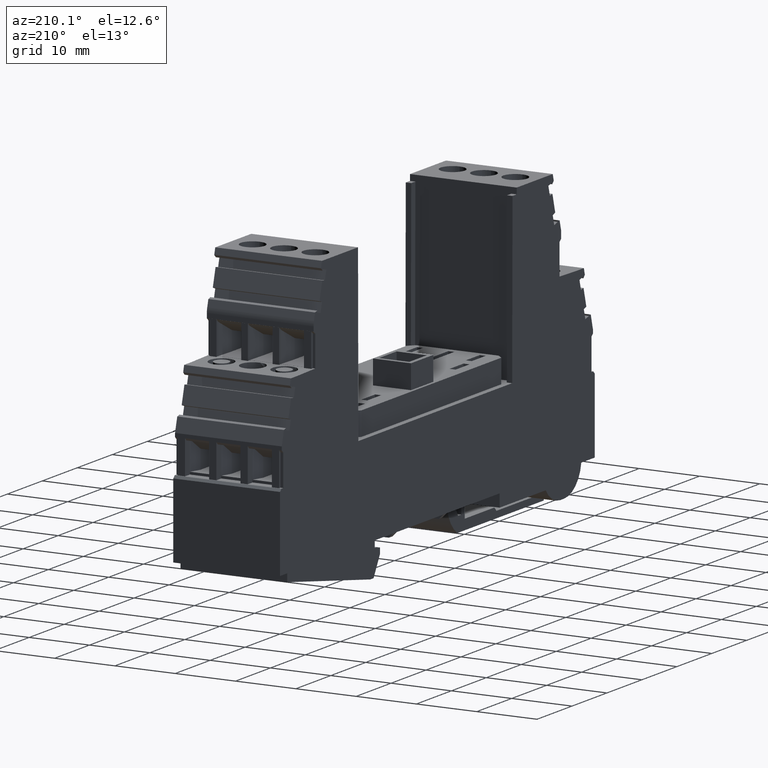
[diagram: clean part render]
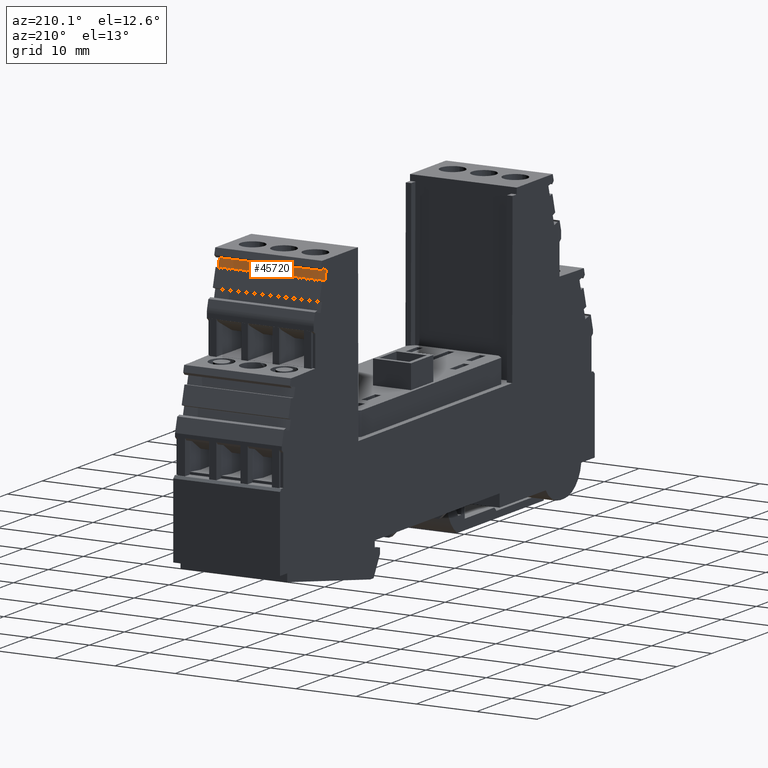
[diagram: same view with one face highlighted and labeled with its STEP entity id]
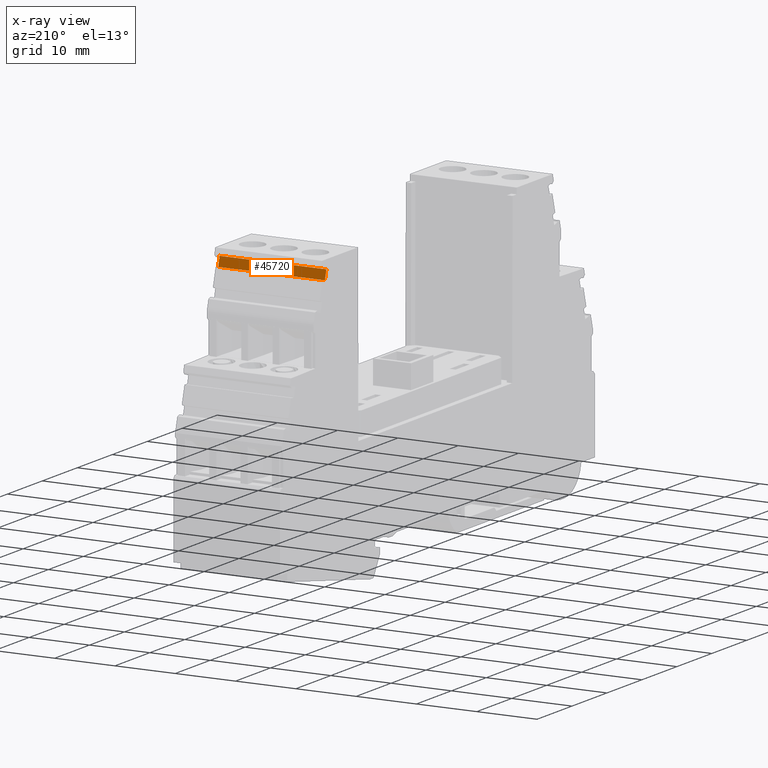
[diagram: x-ray of the same camera — body ghosted, the highlighted face saturated]
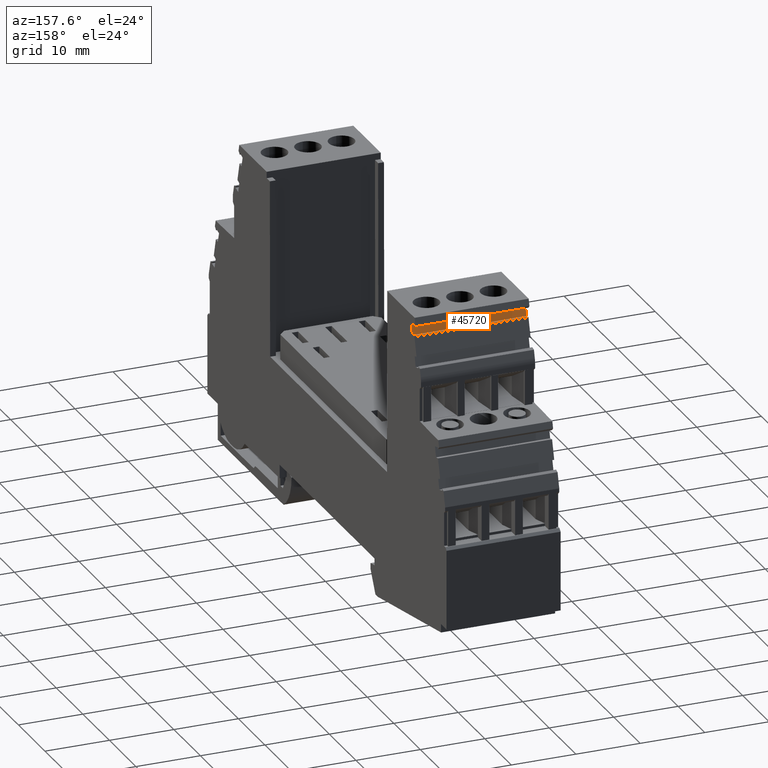
[diagram: same view with one face highlighted and labeled with its STEP entity id]
A machine part, auxiliary view. The second image highlights one B-rep face of the part: STEP entity #45720.
The next image is the same camera in x-ray: the body ghosted, the highlighted face saturated — about 0% of this face is hidden behind the body in this view.
A second angle (auxiliary view) of the same face is appended — the face is thin or edge-on in the first view.
In plain terms, the highlighted planar face has unit normal (0, -0.9646, -0.2639).
Its self-contained STEP definition (entity closure, byte-faithful):
#45330=CARTESIAN_POINT('',(101.416239692907,58.6743906856257,-49.));
#45340=DIRECTION('',(-0.964557418457819,-0.263873049965295,
1.1832251041587E-16));
#45350=DIRECTION('',(0.263873049965295,-0.964557418457819,
-2.37408957350071E-21));
#45360=AXIS2_PLACEMENT_3D('',#45330,#45340,#45350);
#45370=PLANE('',#45360);
#45380=CARTESIAN_POINT('',(111.772264125039,20.8191410000002,-49.));
#45390=DIRECTION('',(0.263873049965295,-0.964557418457819,
-2.37408957350071E-21));
#45400=VECTOR('',#45390,1.);
#45410=LINE('',#45380,#45400);
#45420=CARTESIAN_POINT('',(101.091583213368,59.8611349015706,-49.));
#45430=VERTEX_POINT('',#45420);
#45440=CARTESIAN_POINT('',(101.512957733574,58.3208490729604,-49.));
#45450=VERTEX_POINT('',#45440);
#45460=EDGE_CURVE('',#45430,#45450,#45410,.T.);
#45470=ORIENTED_EDGE('',*,*,#45460,.F.);
#45480=CARTESIAN_POINT('',(101.512957733574,58.3208490729604,
2.25000000009247));
#45490=DIRECTION('',(1.22464679914735E-16,7.51478429024845E-19,1.));
#45500=VECTOR('',#45490,1.);
#45510=LINE('',#45480,#45500);
#45520=CARTESIAN_POINT('',(101.512957733574,58.3208490729604,-31.3));
#45530=VERTEX_POINT('',#45520);
#45540=EDGE_CURVE('',#45450,#45530,#45510,.T.);
#45550=ORIENTED_EDGE('',*,*,#45540,.F.);
#45560=CARTESIAN_POINT('',(122.774976041996,-19.3999999999998,-31.3));
#45570=DIRECTION('',(-0.263873049965295,0.964557418457819,0.));
#45580=VECTOR('',#45570,1.);
#45590=LINE('',#45560,#45580);
#45600=CARTESIAN_POINT('',(101.091583213368,59.8611349015705,
-31.2999999999999));
#45610=VERTEX_POINT('',#45600);
#45620=EDGE_CURVE('',#45530,#45610,#45590,.T.);
#45630=ORIENTED_EDGE('',*,*,#45620,.F.);
#45640=CARTESIAN_POINT('',(101.091583213368,59.8611349015705,
2.25000000009247));
#45650=DIRECTION('',(1.22464679914735E-16,7.51478429024841E-19,1.));
#45660=VECTOR('',#45650,1.);
#45670=LINE('',#45640,#45660);
#45680=EDGE_CURVE('',#45430,#45610,#45670,.T.);
#45690=ORIENTED_EDGE('',*,*,#45680,.T.);
#45700=EDGE_LOOP('',(#45690,#45630,#45550,#45470));
#45710=FACE_OUTER_BOUND('',#45700,.T.);
#45720=ADVANCED_FACE('',(#45710),#45370,.F.);